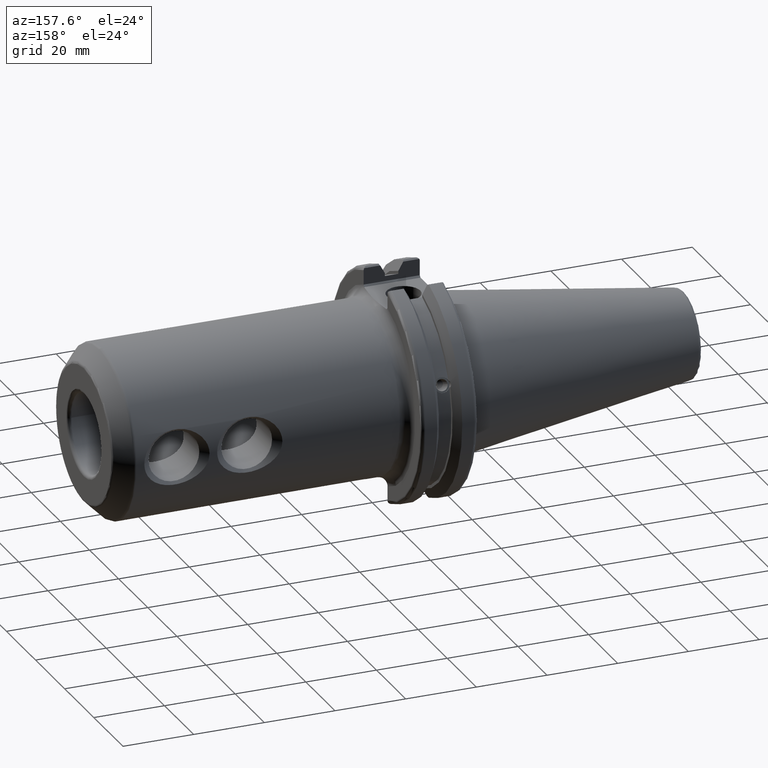
[diagram: clean part render]
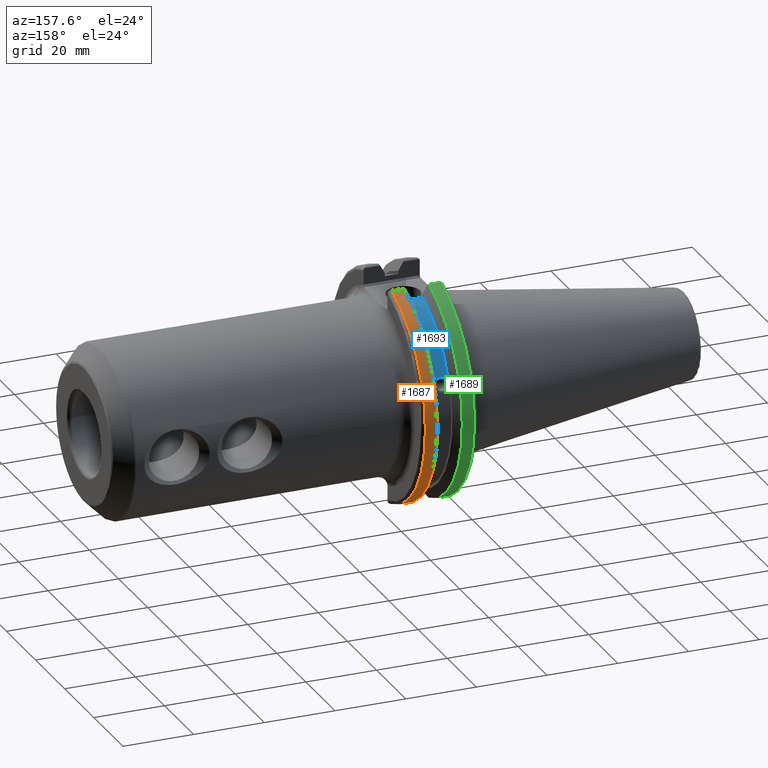
[diagram: same view with three faces highlighted in distinct colors, each labeled with its STEP entity id]
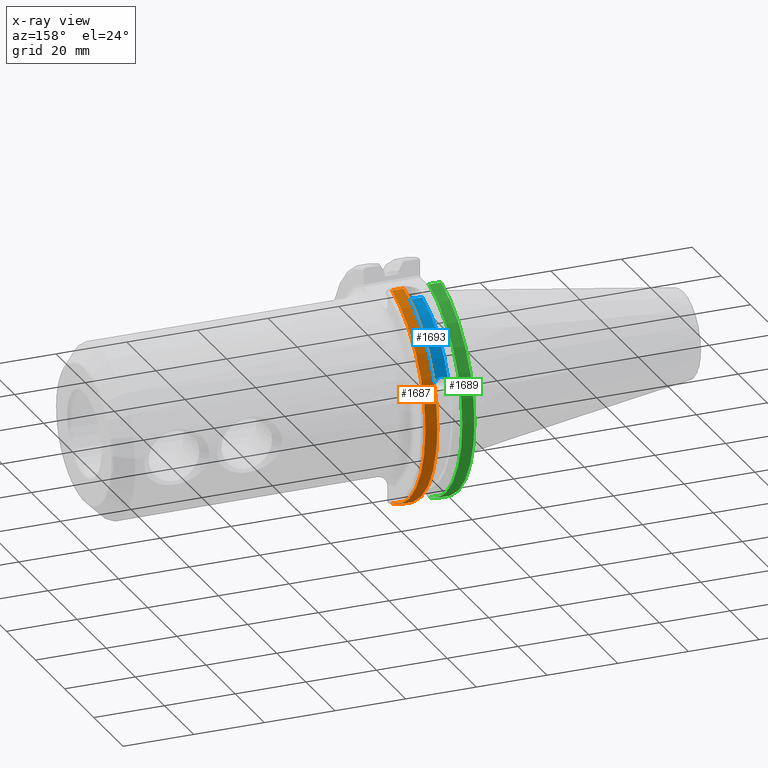
[diagram: x-ray of the same camera — body ghosted, the three highlighted faces saturated]
A machine part, auxiliary view with three faces highlighted in distinct colors.
The next image is the same camera in x-ray (body ghosted, the three faces saturated) — at least one of them is partly hidden behind the body in this view.
Their STEP definitions:

[orange] entity #1687 — the highlighted cylindrical surface (partial cylindrical patch) has radius 31.75 mm, axis along (1, 0, 0).
#142=CYLINDRICAL_SURFACE('',#1890,31.75);
#222=FACE_OUTER_BOUND('',#331,.T.);
#331=EDGE_LOOP('',(#1521,#1522,#1523,#1524));
#409=CIRCLE('',#1857,31.75);
#420=CIRCLE('',#1891,31.75);
#488=LINE('',#3209,#577);
#513=LINE('',#3396,#602);
#577=VECTOR('',#2240,10.);
#602=VECTOR('',#2327,10.);
#794=VERTEX_POINT('',#3183);
#795=VERTEX_POINT('',#3192);
#797=VERTEX_POINT('',#3205);
#826=VERTEX_POINT('',#3395);
#1012=EDGE_CURVE('',#794,#795,#409,.T.);
#1016=EDGE_CURVE('',#797,#794,#488,.T.);
#1069=EDGE_CURVE('',#795,#826,#513,.T.);
#1071=EDGE_CURVE('',#797,#826,#420,.T.);
#1521=ORIENTED_EDGE('',*,*,#1012,.F.);
#1522=ORIENTED_EDGE('',*,*,#1016,.F.);
#1523=ORIENTED_EDGE('',*,*,#1071,.T.);
#1524=ORIENTED_EDGE('',*,*,#1069,.F.);
#1687=ADVANCED_FACE('',(#222),#142,.T.);
#1857=AXIS2_PLACEMENT_3D('',#3193,#2235,#2236);
#1890=AXIS2_PLACEMENT_3D('',#3400,#2328,#2329);
#1891=AXIS2_PLACEMENT_3D('',#3401,#2330,#2331);
#2235=DIRECTION('center_axis',(1.,0.,0.));
#2236=DIRECTION('ref_axis',(0.,1.,-6.12323399573677E-17));
#2240=DIRECTION('',(1.,0.,0.));
#2327=DIRECTION('',(-1.,0.,0.));
#2328=DIRECTION('center_axis',(1.,0.,0.));
#2329=DIRECTION('ref_axis',(0.,1.,0.));
#2330=DIRECTION('center_axis',(1.,0.,0.));
#2331=DIRECTION('ref_axis',(0.,0.,-1.));
#3183=CARTESIAN_POINT('',(18.05,8.67204822802685,-30.5427254764662));
#3192=CARTESIAN_POINT('',(18.05,8.67204822802685,30.5427254764662));
#3193=CARTESIAN_POINT('Origin',(18.05,0.,0.));
#3205=CARTESIAN_POINT('',(14.6602667690756,8.67204822802685,-30.5427254764662));
#3209=CARTESIAN_POINT('',(16.8551333845378,8.67204822802685,-30.5427254764662));
#3395=CARTESIAN_POINT('',(14.6602667690756,8.67204822802685,30.5427254764662));
#3396=CARTESIAN_POINT('',(16.8551333845378,8.67204822802685,30.5427254764662));
#3400=CARTESIAN_POINT('Origin',(16.8551333845378,0.,0.));
#3401=CARTESIAN_POINT('Origin',(14.6602667690756,0.,0.));

[blue] entity #1693 — the highlighted cylindrical surface (partial cylindrical patch) has radius 28.15 mm, axis along (1, 0, 0).
#145=CYLINDRICAL_SURFACE('',#1900,28.15);
#228=FACE_OUTER_BOUND('',#337,.T.);
#337=EDGE_LOOP('',(#1544,#1545,#1546,#1547));
#423=CIRCLE('',#1899,28.15);
#424=CIRCLE('',#1901,28.15);
#508=LINE('',#3386,#597);
#597=VECTOR('',#2314,10.);
#643=B_SPLINE_CURVE_WITH_KNOTS('',3,(#3059,#3060,#3061,#3062,#3063,#3064,
#3065,#3066,#3067,#3068,#3069,#3070,#3071,#3072,#3073),.UNSPECIFIED.,.F.,
 .F.,(4,2,2,3,2,2,4),(-0.231446873660082,-0.158271583089134,-0.0791357915445672,
0.,0.0791357915445671,0.158271583089134,0.231446873660466),
 .UNSPECIFIED.);
#762=VERTEX_POINT('',#3056);
#763=VERTEX_POINT('',#3058);
#824=VERTEX_POINT('',#3383);
#825=VERTEX_POINT('',#3385);
#969=EDGE_CURVE('',#763,#762,#643,.T.);
#1064=EDGE_CURVE('',#825,#824,#508,.T.);
#1077=EDGE_CURVE('',#762,#825,#423,.T.);
#1078=EDGE_CURVE('',#763,#824,#424,.T.);
#1544=ORIENTED_EDGE('',*,*,#969,.T.);
#1545=ORIENTED_EDGE('',*,*,#1077,.T.);
#1546=ORIENTED_EDGE('',*,*,#1064,.T.);
#1547=ORIENTED_EDGE('',*,*,#1078,.F.);
#1693=ADVANCED_FACE('',(#228),#145,.T.);
#1899=AXIS2_PLACEMENT_3D('',#3415,#2349,#2350);
#1900=AXIS2_PLACEMENT_3D('',#3416,#2351,#2352);
#1901=AXIS2_PLACEMENT_3D('',#3417,#2353,#2354);
#2314=DIRECTION('',(1.,0.,0.));
#2349=DIRECTION('center_axis',(1.,0.,0.));
#2350=DIRECTION('ref_axis',(0.,0.,-1.));
#2351=DIRECTION('center_axis',(1.,0.,0.));
#2352=DIRECTION('ref_axis',(0.,1.,0.));
#2353=DIRECTION('center_axis',(1.,0.,0.));
#2354=DIRECTION('ref_axis',(0.,0.,-1.));
#3056=CARTESIAN_POINT('',(9.2191,26.1451788594704,10.4332220529567));
#3058=CARTESIAN_POINT('',(13.0491,26.1451788594704,10.4332220529568));
#3059=CARTESIAN_POINT('Ctrl Pts',(13.0491,26.1451788594704,10.4332220529568));
#3060=CARTESIAN_POINT('Ctrl Pts',(12.9428694290343,26.0576536126147,10.6525563316816));
#3061=CARTESIAN_POINT('Ctrl Pts',(12.791379862294,25.9751489313128,10.8509873904882));
#3062=CARTESIAN_POINT('Ctrl Pts',(12.4326293734259,25.8346412777187,11.1816210830117));
#3063=CARTESIAN_POINT('Ctrl Pts',(12.1965549887012,25.7695111693635,11.3298867884858));
#3064=CARTESIAN_POINT('Ctrl Pts',(11.6791874573612,25.6822868299377,11.5262389251846));
#3065=CARTESIAN_POINT('Ctrl Pts',(11.3978859718152,25.6603958057616,11.5743935949859));
#3066=CARTESIAN_POINT('Ctrl Pts',(11.1341,25.6603958057616,11.5743935949859));
#3067=CARTESIAN_POINT('Ctrl Pts',(10.8703140281848,25.6603958057616,11.5743935949859));
#3068=CARTESIAN_POINT('Ctrl Pts',(10.5890125426388,25.6822868299377,11.5262389251846));
#3069=CARTESIAN_POINT('Ctrl Pts',(10.0716450112988,25.7695111693635,11.3298867884858));
#3070=CARTESIAN_POINT('Ctrl Pts',(9.83557062657411,25.8346412777187,11.1816210830117));
#3071=CARTESIAN_POINT('Ctrl Pts',(9.4768201377051,25.9751489313131,10.8509873904873));
#3072=CARTESIAN_POINT('Ctrl Pts',(9.32533057097183,26.0576536126096,10.6525563316942));
#3073=CARTESIAN_POINT('Ctrl Pts',(9.2191,26.1451788594704,10.4332220529567));
#3383=CARTESIAN_POINT('',(13.0491,8.19,26.932255754021));
#3385=CARTESIAN_POINT('',(9.2191,8.19,26.932255754021));
#3386=CARTESIAN_POINT('',(11.1341,8.19,26.932255754021));
#3415=CARTESIAN_POINT('Origin',(9.2191,0.,0.));
#3416=CARTESIAN_POINT('Origin',(11.1341,0.,0.));
#3417=CARTESIAN_POINT('Origin',(13.0491,0.,0.));

[green] entity #1689 — the highlighted cylindrical surface (partial cylindrical patch) has radius 31.75 mm, axis along (1, 0, 0).
#143=CYLINDRICAL_SURFACE('',#1893,31.75);
#224=FACE_OUTER_BOUND('',#333,.T.);
#333=EDGE_LOOP('',(#1529,#1530,#1531,#1532));
#394=CIRCLE('',#1829,31.75);
#413=CIRCLE('',#1871,31.75);
#501=LINE('',#3354,#590);
#514=LINE('',#3403,#603);
#590=VECTOR('',#2281,10.);
#603=VECTOR('',#2334,10.);
#767=VERTEX_POINT('',#3091);
#768=VERTEX_POINT('',#3095);
#815=VERTEX_POINT('',#3328);
#816=VERTEX_POINT('',#3337);
#975=EDGE_CURVE('',#767,#768,#394,.T.);
#1047=EDGE_CURVE('',#815,#816,#413,.T.);
#1050=EDGE_CURVE('',#816,#767,#501,.T.);
#1072=EDGE_CURVE('',#768,#815,#514,.T.);
#1529=ORIENTED_EDGE('',*,*,#1047,.F.);
#1530=ORIENTED_EDGE('',*,*,#1072,.F.);
#1531=ORIENTED_EDGE('',*,*,#975,.F.);
#1532=ORIENTED_EDGE('',*,*,#1050,.F.);
#1689=ADVANCED_FACE('',(#224),#143,.T.);
#1829=AXIS2_PLACEMENT_3D('',#3096,#2163,#2164);
#1871=AXIS2_PLACEMENT_3D('',#3338,#2277,#2278);
#1893=AXIS2_PLACEMENT_3D('',#3404,#2335,#2336);
#2163=DIRECTION('center_axis',(1.,0.,0.));
#2164=DIRECTION('ref_axis',(0.,0.,-1.));
#2277=DIRECTION('center_axis',(-1.,0.,0.));
#2278=DIRECTION('ref_axis',(0.,1.,1.60812264967664E-16));
#2281=DIRECTION('',(1.,0.,0.));
#2334=DIRECTION('',(-1.,0.,0.));
#2335=DIRECTION('center_axis',(1.,0.,0.));
#2336=DIRECTION('ref_axis',(0.,1.,0.));
#3091=CARTESIAN_POINT('',(7.60793323092436,8.67204822802685,-30.5427254764662));
#3095=CARTESIAN_POINT('',(7.60793323092436,8.67204822802685,30.5427254764662));
#3096=CARTESIAN_POINT('Origin',(7.60793323092436,0.,0.));
#3328=CARTESIAN_POINT('',(4.175,8.67204822802685,30.5427254764662));
#3337=CARTESIAN_POINT('',(4.175,8.67204822802685,-30.5427254764662));
#3338=CARTESIAN_POINT('Origin',(4.175,0.,0.));
#3354=CARTESIAN_POINT('',(5.39146661546218,8.67204822802685,-30.5427254764662));
#3403=CARTESIAN_POINT('',(5.39146661546218,8.67204822802685,30.5427254764662));
#3404=CARTESIAN_POINT('Origin',(5.39146661546218,0.,0.));